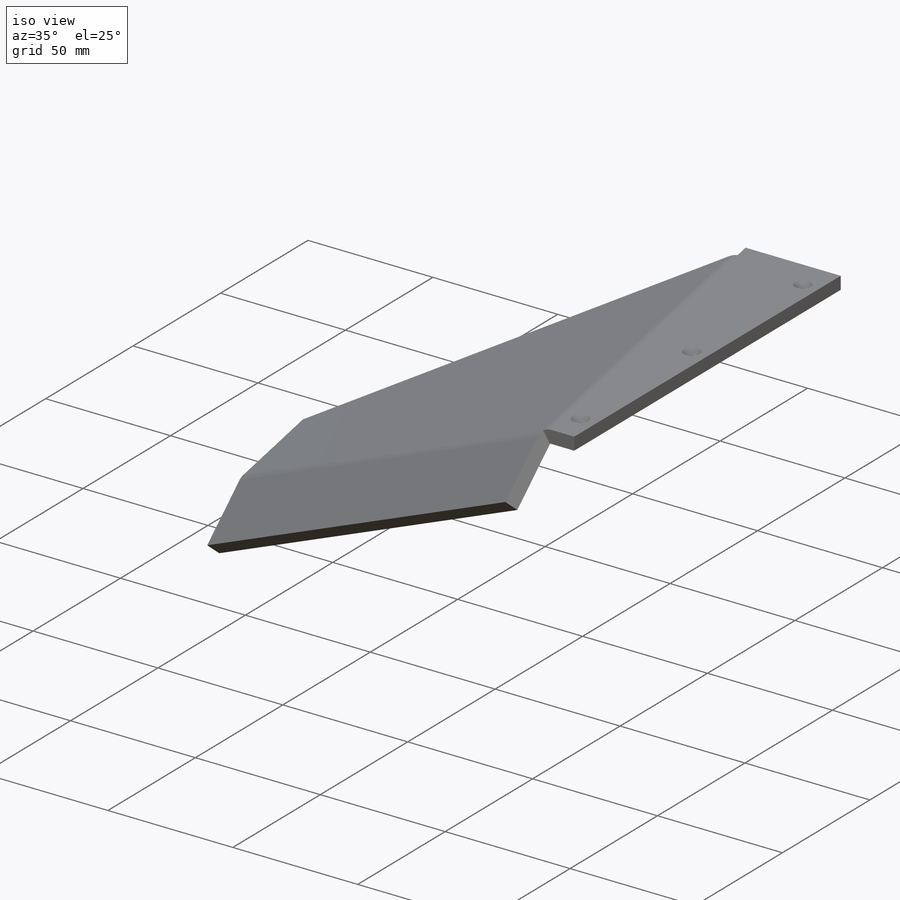
[diagram: iso view]
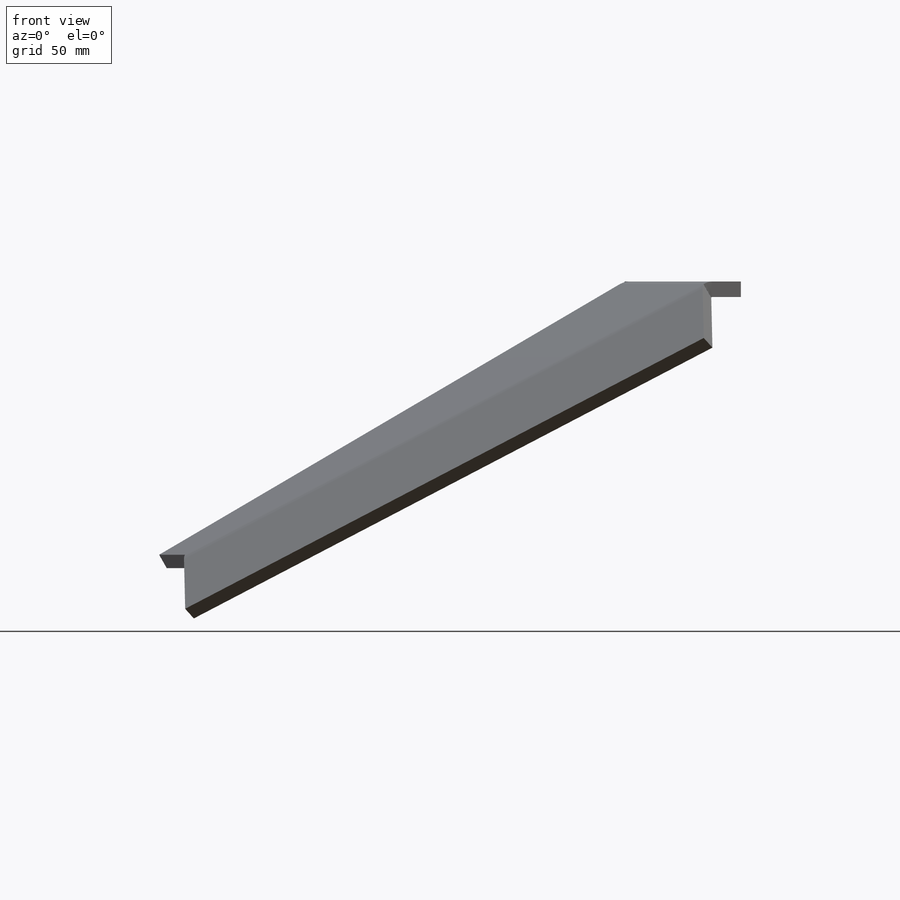
[diagram: front view]
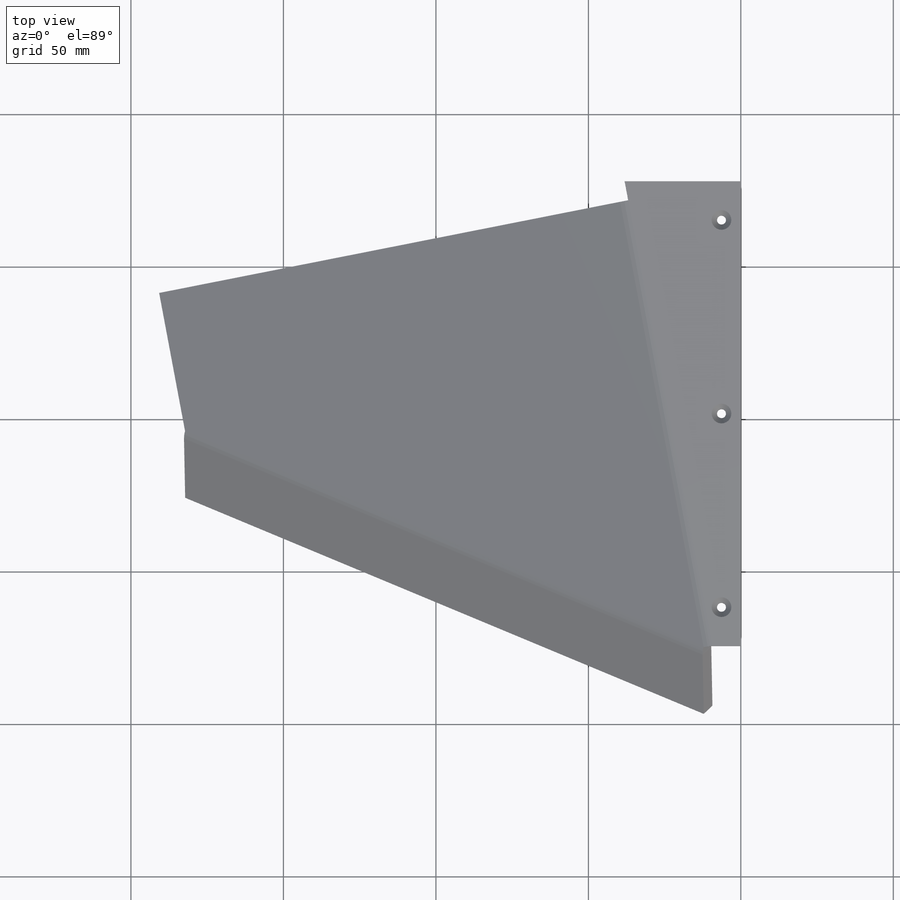
[diagram: top view]
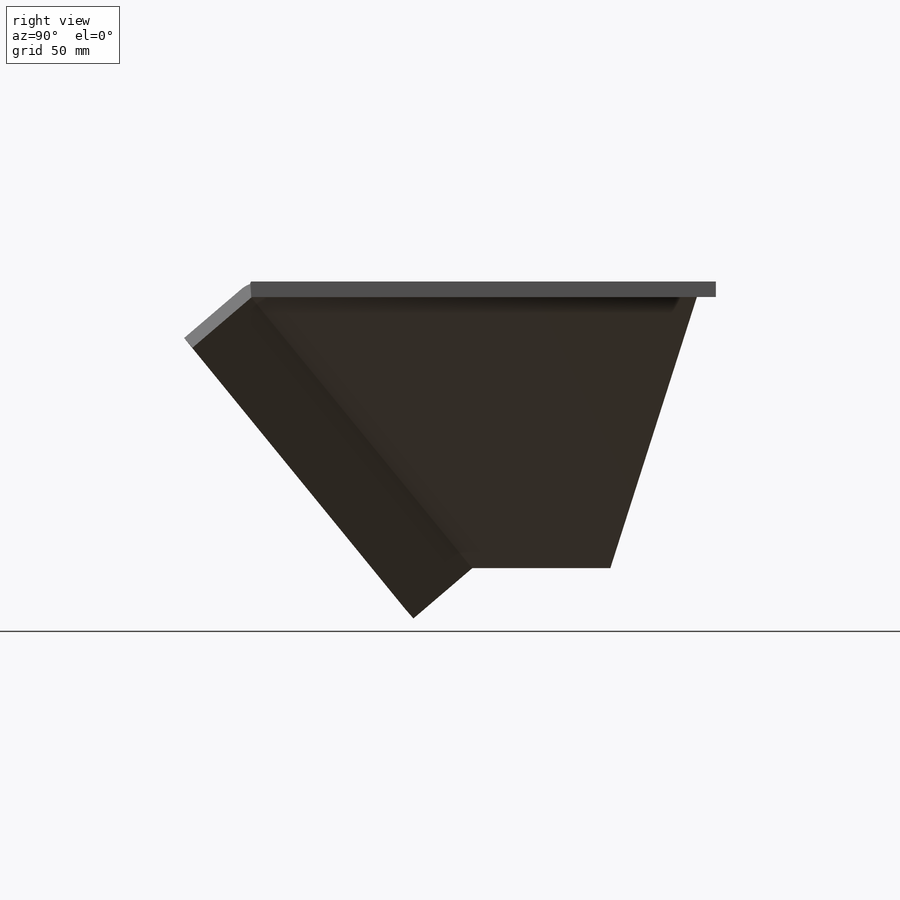
[diagram: right view]
SOLIDWORKS PART (.sldprt)
format: sldprt  version: not decoded by parser v0  size: 875,008 bytes
history: native  units: mm
features: sketch x15, sheet_metal_op x6, hole x4, material x1 + 5 further entries (+12 scaffold rows collapsed; 4 parser-record rows omitted)
feature tree (47):
  scaffold x12  (default folders/planes/origin — collapsed)
  material  "Delrin 2700 NC010, Low Viscosity Acetal Copolymer (SS)"
  sketch  "Sketch1"  dims[c1.D1=76.8604mm c1.D2=12.7mm c1.D3=12.7mm c2.D3=~15.045279deg c3.D3=~261.799388mm c3.D1=152.4mm c3.D2=38.1mm c4.D3=9.525mm c4.D1=0.7366mm c4.D2=0.5 c5.D3=0.0deg c5.D6=~28.64789deg]
  sheet_metal_op  "Base-Flange1"
  sketch  "Sketch4"  dims[c1.D1=~1570.796327mm c1.D2=~1047.197551mm c1.D3=177.8mm c1.D4=6.35mm c2.D1=0.7366mm c2.D4=~523.598776mm c2.D5=1.0 c2.D8=~0.145531deg c2.D9=~0.145531deg c3.D1=0.7366mm c3.D2=~28.64789deg c3.D3=0.0deg c3.D6=10.0mm c3.D7=177.8mm c3.Edge-Flange2=0.0]
  sketch  "Sketch7"
  sheet_metal_op  "EdgeBend2"
  hole  "CSK for #4 Flat Head Socket Cap Screw2"  Diameter=2.9464mm Depth=110.477784mm
  sketch  "Sketch12"  dims[D1=6.35mm D2=12.7mm]
  sketch  "Sketch11"  dims[hole-wizard template sketch: 40 standard entries collapsed; hole parameters kept: c6.Thru Hole Dia.=2.9464mm c6.Thru Hole Depth=~110.477784mm c6.Near C'Sink Dia.=6.477mm c6.Near C'Sink Angle=~1431.169987mm]  [1 undecoded]
  sketch  "Bend-Lines1"
  sketch  "Bounding-Box1"  dims[D1=0.127mm]
  sheet_metal_op  "Sheet-Metal(3)"
  "Flat-Pattern(3)"
  sketch  "Bend-Lines2"
  sketch  "Bounding-Box2"
  parser-record x4  (decoder bookkeeping rows leaked as tree rows — omitted from the tree; the rows remain in map.json)
  hole  "Sheet-Metal(7)"  Diameter=0.7366mm
  sheet_metal_op  "Flat-Pattern(3)"
  sketch  "Bend-Lines2"
  sketch  "Bounding-Box2"
  hole  "Sheet-Metal(8)"  Diameter=0.7366mm
  sheet_metal_op  "Flat-Pattern(3)"
  sketch  "Bend-Lines2"
  sketch  "Bounding-Box2"
  "Flatten-<EdgeBend2>1"
  "Flatten-<EdgeBend4>2"
  hole  "Sheet-Metal(9)"  Diameter=0.7366mm
  sheet_metal_op  "Flat-Pattern(3)"
  sketch  "Bend-Lines2"
  sketch  "Bounding-Box2"
  "Flatten-<EdgeBend2>1"
  "Flatten-<EdgeBend4>3"
decode coverage: 9 of 25 modeling features carry decoded parameters; 5 rows unclassified (native names shown)
note: ~ marks probable driven/reference dimensions
note: suppression state not decoded; provenance and decode notes live in map.json
note: 1 required parameter value undecoded (feature->parameter linkage not recoverable at this tier; creation-order binding heuristic only, values carry confidence <= 0.55)
